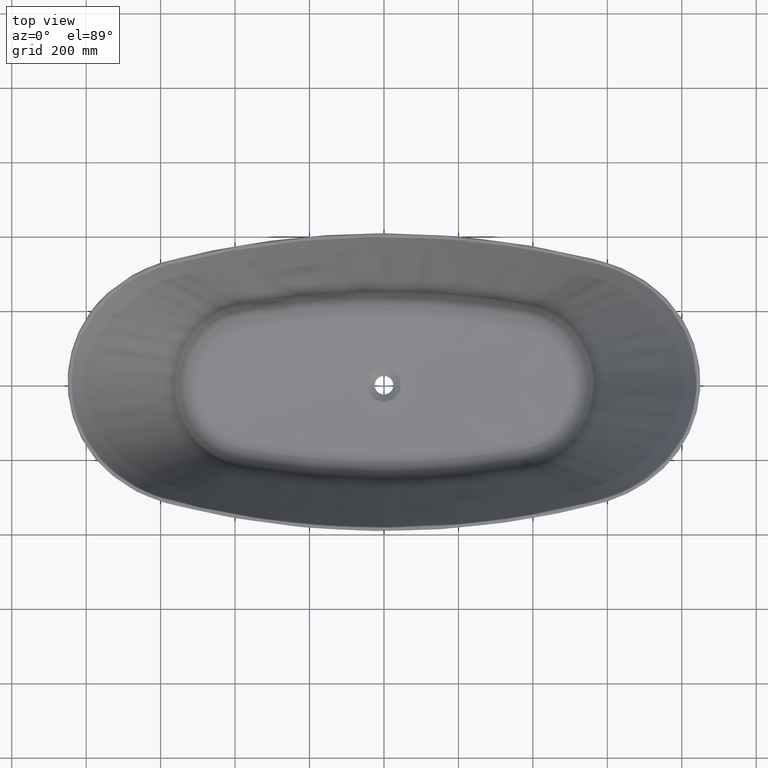
[diagram: clean part render]
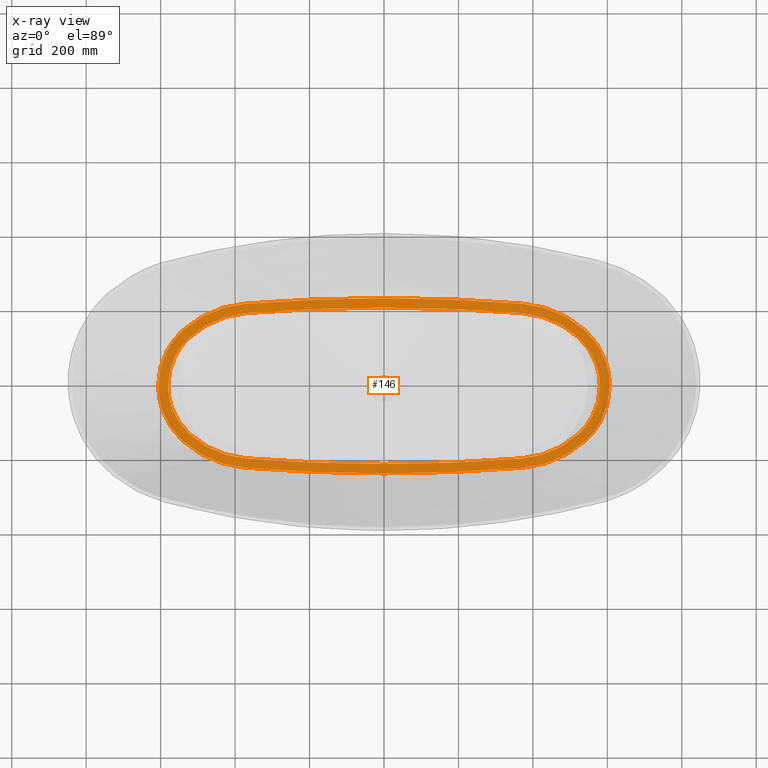
[diagram: x-ray — body ghosted, one internal face saturated and labeled with its STEP entity id]
A machine part, top view, then the same camera in x-ray: the body is ghosted and one INTERNAL B-rep face — a face not visible from any outside direction — is saturated and labeled: STEP entity #146.
In plain terms, the highlighted planar face has unit normal (0, 0, -1).
Its self-contained STEP definition (entity closure, byte-faithful):
#146=ADVANCED_FACE('',(#180,#181),#176,.F.);
#176=PLANE('',#638);
#180=FACE_BOUND('',#216,.T.);
#181=FACE_BOUND('',#217,.T.);
#216=EDGE_LOOP('',(#264,#265,#266,#267,#268,#269,#270,#271,#272,#273,#274,
#275));
#217=EDGE_LOOP('',(#276,#277,#278,#279,#280,#281,#282,#283,#284,#285,#286,
#287));
#264=ORIENTED_EDGE('',*,*,#486,.T.);
#265=ORIENTED_EDGE('',*,*,#487,.T.);
#266=ORIENTED_EDGE('',*,*,#488,.T.);
#267=ORIENTED_EDGE('',*,*,#489,.T.);
#268=ORIENTED_EDGE('',*,*,#490,.T.);
#269=ORIENTED_EDGE('',*,*,#491,.T.);
#270=ORIENTED_EDGE('',*,*,#492,.T.);
#271=ORIENTED_EDGE('',*,*,#493,.T.);
#272=ORIENTED_EDGE('',*,*,#494,.T.);
#273=ORIENTED_EDGE('',*,*,#495,.T.);
#274=ORIENTED_EDGE('',*,*,#496,.T.);
#275=ORIENTED_EDGE('',*,*,#497,.T.);
#276=ORIENTED_EDGE('',*,*,#498,.F.);
#277=ORIENTED_EDGE('',*,*,#499,.F.);
#278=ORIENTED_EDGE('',*,*,#500,.F.);
#279=ORIENTED_EDGE('',*,*,#501,.F.);
#280=ORIENTED_EDGE('',*,*,#502,.F.);
#281=ORIENTED_EDGE('',*,*,#503,.F.);
#282=ORIENTED_EDGE('',*,*,#504,.F.);
#283=ORIENTED_EDGE('',*,*,#505,.F.);
#284=ORIENTED_EDGE('',*,*,#506,.F.);
#285=ORIENTED_EDGE('',*,*,#507,.F.);
#286=ORIENTED_EDGE('',*,*,#508,.F.);
#287=ORIENTED_EDGE('',*,*,#509,.F.);
#420=VERTEX_POINT('',#697);
#421=VERTEX_POINT('',#698);
#422=VERTEX_POINT('',#711);
#423=VERTEX_POINT('',#718);
#424=VERTEX_POINT('',#725);
#425=VERTEX_POINT('',#738);
#426=VERTEX_POINT('',#753);
#427=VERTEX_POINT('',#768);
#428=VERTEX_POINT('',#781);
#429=VERTEX_POINT('',#788);
#430=VERTEX_POINT('',#795);
#431=VERTEX_POINT('',#808);
#432=VERTEX_POINT('',#835);
#433=VERTEX_POINT('',#836);
#434=VERTEX_POINT('',#851);
#435=VERTEX_POINT('',#866);
#436=VERTEX_POINT('',#881);
#437=VERTEX_POINT('',#886);
#438=VERTEX_POINT('',#891);
#439=VERTEX_POINT('',#904);
#440=VERTEX_POINT('',#919);
#441=VERTEX_POINT('',#934);
#442=VERTEX_POINT('',#949);
#443=VERTEX_POINT('',#954);
#486=EDGE_CURVE('',#420,#421,#564,.T.);
#487=EDGE_CURVE('',#421,#422,#565,.T.);
#488=EDGE_CURVE('',#422,#423,#566,.T.);
#489=EDGE_CURVE('',#423,#424,#567,.T.);
#490=EDGE_CURVE('',#424,#425,#568,.T.);
#491=EDGE_CURVE('',#425,#426,#569,.T.);
#492=EDGE_CURVE('',#426,#427,#570,.T.);
#493=EDGE_CURVE('',#427,#428,#571,.T.);
#494=EDGE_CURVE('',#428,#429,#572,.T.);
#495=EDGE_CURVE('',#429,#430,#573,.T.);
#496=EDGE_CURVE('',#430,#431,#574,.T.);
#497=EDGE_CURVE('',#431,#420,#575,.T.);
#498=EDGE_CURVE('',#432,#433,#576,.T.);
#499=EDGE_CURVE('',#434,#432,#577,.T.);
#500=EDGE_CURVE('',#435,#434,#578,.T.);
#501=EDGE_CURVE('',#436,#435,#579,.T.);
#502=EDGE_CURVE('',#437,#436,#580,.T.);
#503=EDGE_CURVE('',#438,#437,#581,.T.);
#504=EDGE_CURVE('',#439,#438,#582,.T.);
#505=EDGE_CURVE('',#440,#439,#583,.T.);
#506=EDGE_CURVE('',#441,#440,#584,.T.);
#507=EDGE_CURVE('',#442,#441,#585,.T.);
#508=EDGE_CURVE('',#443,#442,#586,.T.);
#509=EDGE_CURVE('',#433,#443,#587,.T.);
#564=B_SPLINE_CURVE_WITH_KNOTS('',3,(#683,#684,#685,#686,#687,#688,#689,
#690,#691,#692,#693,#694,#695,#696),.UNSPECIFIED.,.F.,.F.,(4,2,2,2,2,2,
4),(0.,0.250000000000001,0.375000000000001,0.500000000000001,0.625000000000001,
0.750000000000001,1.),.UNSPECIFIED.);
#565=B_SPLINE_CURVE_WITH_KNOTS('',3,(#699,#700,#701,#702,#703,#704,#705,
#706,#707,#708,#709,#710),.UNSPECIFIED.,.F.,.F.,(4,2,2,2,2,4),(0.,0.249999999999999,
0.5,0.625,0.75,1.),.UNSPECIFIED.);
#566=B_SPLINE_CURVE_WITH_KNOTS('',3,(#712,#713,#714,#715,#716,#717),
 .UNSPECIFIED.,.F.,.F.,(4,2,4),(0.,0.5,1.),.UNSPECIFIED.);
#567=B_SPLINE_CURVE_WITH_KNOTS('',3,(#719,#720,#721,#722,#723,#724),
 .UNSPECIFIED.,.F.,.F.,(4,2,4),(0.,0.5,1.),.UNSPECIFIED.);
#568=B_SPLINE_CURVE_WITH_KNOTS('',3,(#726,#727,#728,#729,#730,#731,#732,
#733,#734,#735,#736,#737),.UNSPECIFIED.,.F.,.F.,(4,2,2,2,2,4),(0.,0.250000000000001,
0.500000000000001,0.625000000000001,0.750000000000001,1.),.UNSPECIFIED.);
#569=B_SPLINE_CURVE_WITH_KNOTS('',3,(#739,#740,#741,#742,#743,#744,#745,
#746,#747,#748,#749,#750,#751,#752),.UNSPECIFIED.,.F.,.F.,(4,2,2,2,2,2,
4),(0.,0.25,0.375,0.5,0.625,0.75,1.),.UNSPECIFIED.);
#570=B_SPLINE_CURVE_WITH_KNOTS('',3,(#754,#755,#756,#757,#758,#759,#760,
#761,#762,#763,#764,#765,#766,#767),.UNSPECIFIED.,.F.,.F.,(4,2,2,2,2,2,
4),(0.,0.250000000000001,0.375000000000001,0.500000000000001,0.625000000000001,
0.750000000000001,1.),.UNSPECIFIED.);
#571=B_SPLINE_CURVE_WITH_KNOTS('',3,(#769,#770,#771,#772,#773,#774,#775,
#776,#777,#778,#779,#780),.UNSPECIFIED.,.F.,.F.,(4,2,2,2,2,4),(0.,0.25,
0.499999999999999,0.625,0.75,1.),.UNSPECIFIED.);
#572=B_SPLINE_CURVE_WITH_KNOTS('',3,(#782,#783,#784,#785,#786,#787),
 .UNSPECIFIED.,.F.,.F.,(4,2,4),(0.,0.5,1.),.UNSPECIFIED.);
#573=B_SPLINE_CURVE_WITH_KNOTS('',3,(#789,#790,#791,#792,#793,#794),
 .UNSPECIFIED.,.F.,.F.,(4,2,4),(0.,0.5,1.),.UNSPECIFIED.);
#574=B_SPLINE_CURVE_WITH_KNOTS('',3,(#796,#797,#798,#799,#800,#801,#802,
#803,#804,#805,#806,#807),.UNSPECIFIED.,.F.,.F.,(4,2,2,2,2,4),(0.,0.25,
0.5,0.625,0.75,1.),.UNSPECIFIED.);
#575=B_SPLINE_CURVE_WITH_KNOTS('',3,(#809,#810,#811,#812,#813,#814,#815,
#816,#817,#818,#819,#820,#821,#822),.UNSPECIFIED.,.F.,.F.,(4,2,2,2,2,2,
4),(0.,0.25,0.375,0.5,0.625,0.75,1.),.UNSPECIFIED.);
#576=B_SPLINE_CURVE_WITH_KNOTS('',3,(#823,#824,#825,#826,#827,#828,#829,
#830,#831,#832,#833,#834),.UNSPECIFIED.,.F.,.F.,(4,2,2,2,2,4),(0.,0.250000000000001,
0.500000000000001,0.750000000000001,0.875,1.),.UNSPECIFIED.);
#577=B_SPLINE_CURVE_WITH_KNOTS('',3,(#837,#838,#839,#840,#841,#842,#843,
#844,#845,#846,#847,#848,#849,#850),.UNSPECIFIED.,.F.,.F.,(4,2,2,2,2,2,
4),(0.,0.125,0.25,0.5,0.75,0.875,1.),.UNSPECIFIED.);
#578=B_SPLINE_CURVE_WITH_KNOTS('',3,(#852,#853,#854,#855,#856,#857,#858,
#859,#860,#861,#862,#863,#864,#865),.UNSPECIFIED.,.F.,.F.,(4,2,2,2,2,2,
4),(0.,0.125,0.25,0.5,0.75,0.875,1.),.UNSPECIFIED.);
#579=B_SPLINE_CURVE_WITH_KNOTS('',3,(#867,#868,#869,#870,#871,#872,#873,
#874,#875,#876,#877,#878,#879,#880),.UNSPECIFIED.,.F.,.F.,(4,2,2,2,2,2,
4),(0.,0.125,0.25,0.5,0.75,0.875,1.),.UNSPECIFIED.);
#580=B_SPLINE_CURVE_WITH_KNOTS('',3,(#882,#883,#884,#885),.UNSPECIFIED.,
 .F.,.F.,(4,4),(0.,1.),.UNSPECIFIED.);
#581=B_SPLINE_CURVE_WITH_KNOTS('',3,(#887,#888,#889,#890),.UNSPECIFIED.,
 .F.,.F.,(4,4),(0.,1.),.UNSPECIFIED.);
#582=B_SPLINE_CURVE_WITH_KNOTS('',3,(#892,#893,#894,#895,#896,#897,#898,
#899,#900,#901,#902,#903),.UNSPECIFIED.,.F.,.F.,(4,2,2,2,2,4),(0.,0.25,
0.5,0.75,0.875,1.),.UNSPECIFIED.);
#583=B_SPLINE_CURVE_WITH_KNOTS('',3,(#905,#906,#907,#908,#909,#910,#911,
#912,#913,#914,#915,#916,#917,#918),.UNSPECIFIED.,.F.,.F.,(4,2,2,2,2,2,
4),(0.,0.125,0.249999999999999,0.499999999999999,0.749999999999999,0.874999999999999,
1.),.UNSPECIFIED.);
#584=B_SPLINE_CURVE_WITH_KNOTS('',3,(#920,#921,#922,#923,#924,#925,#926,
#927,#928,#929,#930,#931,#932,#933),.UNSPECIFIED.,.F.,.F.,(4,2,2,2,2,2,
4),(0.,0.125,0.25,0.5,0.75,0.875,1.),.UNSPECIFIED.);
#585=B_SPLINE_CURVE_WITH_KNOTS('',3,(#935,#936,#937,#938,#939,#940,#941,
#942,#943,#944,#945,#946,#947,#948),.UNSPECIFIED.,.F.,.F.,(4,2,2,2,2,2,
4),(0.,0.125,0.25,0.5,0.75,0.875,1.),.UNSPECIFIED.);
#586=B_SPLINE_CURVE_WITH_KNOTS('',3,(#950,#951,#952,#953),.UNSPECIFIED.,
 .F.,.F.,(4,4),(0.,1.),.UNSPECIFIED.);
#587=B_SPLINE_CURVE_WITH_KNOTS('',3,(#955,#956,#957,#958),.UNSPECIFIED.,
 .F.,.F.,(4,4),(0.,1.),.UNSPECIFIED.);
#638=AXIS2_PLACEMENT_3D('',#959,#654,#655);
#654=DIRECTION('',(0.,0.,-1.));
#655=DIRECTION('',(-0.0710097247914067,0.997475623253545,0.));
#683=CARTESIAN_POINT('',(579.99988551936,7.15397143041703E-6,-572.));
#684=CARTESIAN_POINT('',(579.999882628144,-12.1242826560328,-572.));
#685=CARTESIAN_POINT('',(578.751097946527,-24.090596611442,-572.));
#686=CARTESIAN_POINT('',(575.031242567321,-41.8064554004511,-572.));
#687=CARTESIAN_POINT('',(573.472885632175,-47.6863365658462,-572.));
#688=CARTESIAN_POINT('',(569.796657229539,-59.1350587449963,-572.));
#689=CARTESIAN_POINT('',(567.673954647341,-64.7322090064397,-572.));
#690=CARTESIAN_POINT('',(562.870634295052,-75.6771217895383,-572.));
#691=CARTESIAN_POINT('',(560.189514926441,-81.0246600969686,-572.));
#692=CARTESIAN_POINT('',(554.261430862597,-91.4668042049884,-572.));
#693=CARTESIAN_POINT('',(550.99597468004,-96.5854471072753,-572.));
#694=CARTESIAN_POINT('',(540.462731939863,-111.339411001318,-572.));
#695=CARTESIAN_POINT('',(532.489909135349,-120.361429927127,-572.));
#696=CARTESIAN_POINT('',(523.57092169661,-128.573341623775,-572.));
#697=CARTESIAN_POINT('',(579.99988551936,7.1539712794748E-6,-572.));
#698=CARTESIAN_POINT('',(523.57092169661,-128.573341623775,-572.));
#699=CARTESIAN_POINT('',(523.570921696609,-128.573341623775,-572.));
#700=CARTESIAN_POINT('',(513.086909189503,-138.226206988397,-572.));
#701=CARTESIAN_POINT('',(501.885942930787,-146.914445126418,-572.));
#702=CARTESIAN_POINT('',(478.090021130313,-162.415375018892,-572.));
#703=CARTESIAN_POINT('',(465.514747826253,-169.189979030715,-572.));
#704=CARTESIAN_POINT('',(445.969010886053,-177.703453764772,-572.));
#705=CARTESIAN_POINT('',(439.307679794319,-180.27955925873,-572.));
#706=CARTESIAN_POINT('',(425.883395869618,-184.83975094617,-572.));
#707=CARTESIAN_POINT('',(419.105689896763,-186.831590804364,-572.));
#708=CARTESIAN_POINT('',(398.579064784691,-191.956344747875,-572.));
#709=CARTESIAN_POINT('',(384.636151092885,-194.236350499592,-572.));
#710=CARTESIAN_POINT('',(370.431872342851,-195.36724957124,-572.));
#711=CARTESIAN_POINT('',(370.431872342851,-195.36724957124,-572.));
#712=CARTESIAN_POINT('',(370.431872342851,-195.36724957124,-572.));
#713=CARTESIAN_POINT('',(308.819773517108,-200.272607075865,-572.));
#714=CARTESIAN_POINT('',(247.112599289225,-203.90113824869,-572.));
#715=CARTESIAN_POINT('',(123.602692156585,-208.779837684053,-572.));
#716=CARTESIAN_POINT('',(61.8067026414226,-209.999999817553,-572.));
#717=CARTESIAN_POINT('',(2.04705881745967E-6,-209.999995600157,-572.));
#718=CARTESIAN_POINT('',(2.04705886913502E-6,-209.999995600157,-572.));
#719=CARTESIAN_POINT('',(2.04705887963883E-6,-209.999995600157,-572.));
#720=CARTESIAN_POINT('',(-61.8067009636743,-209.999991382761,-572.));
#721=CARTESIAN_POINT('',(-123.608166535709,-208.779731466056,-572.));
#722=CARTESIAN_POINT('',(-247.118072942993,-203.900831702966,-572.));
#723=CARTESIAN_POINT('',(-308.819640895535,-200.272617408991,-572.));
#724=CARTESIAN_POINT('',(-370.431872476997,-195.36724960553,-572.));
#725=CARTESIAN_POINT('',(-370.431872476997,-195.36724960553,-572.));
#726=CARTESIAN_POINT('',(-370.431872476997,-195.36724960553,-572.));
#727=CARTESIAN_POINT('',(-384.636462488502,-194.236325814665,-572.));
#728=CARTESIAN_POINT('',(-398.627192279551,-191.952391236757,-572.));
#729=CARTESIAN_POINT('',(-426.177122621597,-185.057965661802,-572.));
#730=CARTESIAN_POINT('',(-439.697597569798,-180.450571347313,-572.));
#731=CARTESIAN_POINT('',(-459.23478468096,-171.917358580539,-572.));
#732=CARTESIAN_POINT('',(-465.654752848519,-168.787880707843,-572.));
#733=CARTESIAN_POINT('',(-478.12983476107,-162.051631831153,-572.));
#734=CARTESIAN_POINT('',(-484.200751934066,-158.439384666474,-572.));
#735=CARTESIAN_POINT('',(-501.921558178837,-146.881887592513,-572.));
#736=CARTESIAN_POINT('',(-513.086688334569,-138.226410932468,-572.));
#737=CARTESIAN_POINT('',(-523.570920985473,-128.57334226029,-572.));
#738=CARTESIAN_POINT('',(-523.570920985473,-128.57334226029,-572.));
#739=CARTESIAN_POINT('',(-523.570920985473,-128.57334226029,-572.));
#740=CARTESIAN_POINT('',(-532.489817592958,-120.361513669793,-572.));
#741=CARTESIAN_POINT('',(-540.456323270867,-111.345358059707,-572.));
#742=CARTESIAN_POINT('',(-550.976744814648,-96.6140002255503,-572.));
#743=CARTESIAN_POINT('',(-554.249559879194,-91.4866129807353,-572.));
#744=CARTESIAN_POINT('',(-560.186922728381,-81.0302976353081,-572.));
#745=CARTESIAN_POINT('',(-562.869711780668,-75.6789627619492,-572.));
#746=CARTESIAN_POINT('',(-567.673230865955,-64.7341289587589,-572.));
#747=CARTESIAN_POINT('',(-569.794263289505,-59.1407603143948,-572.));
#748=CARTESIAN_POINT('',(-573.466343304142,-47.7084441194988,-572.));
#749=CARTESIAN_POINT('',(-575.023270505745,-41.839884467454,-572.));
#750=CARTESIAN_POINT('',(-578.751174553327,-24.0993380305139,-572.));
#751=CARTESIAN_POINT('',(-579.999888412529,-12.1243690663303,-572.));
#752=CARTESIAN_POINT('',(-579.999885519362,-7.15875560338672E-6,-572.));
#753=CARTESIAN_POINT('',(-579.999885519362,-7.15875566255702E-6,-572.));
#754=CARTESIAN_POINT('',(-579.999885519362,-7.15875572172731E-6,-572.));
#755=CARTESIAN_POINT('',(-579.999882626212,12.1242825522096,-572.));
#756=CARTESIAN_POINT('',(-578.751097969173,24.0905964479408,-572.));
#757=CARTESIAN_POINT('',(-575.031242600045,41.8064551972899,-572.));
#758=CARTESIAN_POINT('',(-573.472885685483,47.6863362871612,-572.));
#759=CARTESIAN_POINT('',(-569.796657342489,59.1350583051571,-572.));
#760=CARTESIAN_POINT('',(-567.673954786076,64.7322085036323,-572.));
#761=CARTESIAN_POINT('',(-562.870634483779,75.6771211981393,-572.));
#762=CARTESIAN_POINT('',(-560.189515132568,81.0246594769391,-572.));
#763=CARTESIAN_POINT('',(-554.261431081618,91.4668035565018,-572.));
#764=CARTESIAN_POINT('',(-550.995974871612,96.5854464577599,-572.));
#765=CARTESIAN_POINT('',(-540.462732379783,111.339410212528,-572.));
#766=CARTESIAN_POINT('',(-532.489909878665,120.361429208098,-572.));
#767=CARTESIAN_POINT('',(-523.570922184083,128.573340540073,-572.));
#768=CARTESIAN_POINT('',(-523.570922184083,128.573340540073,-572.));
#769=CARTESIAN_POINT('',(-523.570922184083,128.573340540073,-572.));
#770=CARTESIAN_POINT('',(-513.086909382299,138.226205470455,-572.));
#771=CARTESIAN_POINT('',(-501.885943279846,146.914443902041,-572.));
#772=CARTESIAN_POINT('',(-478.090021338623,162.415374007229,-572.));
#773=CARTESIAN_POINT('',(-465.51474811006,169.189977869443,-572.));
#774=CARTESIAN_POINT('',(-445.969010988786,177.703452445162,-572.));
#775=CARTESIAN_POINT('',(-439.307679768799,180.27955758265,-572.));
#776=CARTESIAN_POINT('',(-425.883395949993,184.839749181233,-572.));
#777=CARTESIAN_POINT('',(-419.105690071755,186.831589244119,-572.));
#778=CARTESIAN_POINT('',(-398.57906498552,191.956342861899,-572.));
#779=CARTESIAN_POINT('',(-384.636151252203,194.236348398128,-572.));
#780=CARTESIAN_POINT('',(-370.431872423536,195.36724735386,-572.));
#781=CARTESIAN_POINT('',(-370.431872423536,195.36724735386,-572.));
#782=CARTESIAN_POINT('',(-370.431872423536,195.36724735386,-572.));
#783=CARTESIAN_POINT('',(-308.819773213733,200.272604359117,-572.));
#784=CARTESIAN_POINT('',(-247.112598486765,203.901132350411,-572.));
#785=CARTESIAN_POINT('',(-123.602690861675,208.779835760421,-572.));
#786=CARTESIAN_POINT('',(-61.8067009355622,209.999999999033,-572.));
#787=CARTESIAN_POINT('',(-1.82987568916602E-9,210.,-572.));
#788=CARTESIAN_POINT('',(-1.82991564291378E-9,210.,-572.));
#789=CARTESIAN_POINT('',(-1.82991442512807E-9,210.,-572.));
#790=CARTESIAN_POINT('',(61.8067028206518,210.000000000967,-572.));
#791=CARTESIAN_POINT('',(123.608167937169,208.779728984252,-572.));
#792=CARTESIAN_POINT('',(247.118073880912,203.900826092242,-572.));
#793=CARTESIAN_POINT('',(308.819641562539,200.272613619353,-572.));
#794=CARTESIAN_POINT('',(370.43187304232,195.367247357444,-572.));
#795=CARTESIAN_POINT('',(370.43187304232,195.367247357444,-572.));
#796=CARTESIAN_POINT('',(370.43187304232,195.367247357444,-572.));
#797=CARTESIAN_POINT('',(384.636462932424,194.23632392978,-572.));
#798=CARTESIAN_POINT('',(398.627192474536,191.952389360215,-572.));
#799=CARTESIAN_POINT('',(426.177122293027,185.057964334875,-572.));
#800=CARTESIAN_POINT('',(439.697597376304,180.450570091957,-572.));
#801=CARTESIAN_POINT('',(459.234784311691,171.917357690042,-572.));
#802=CARTESIAN_POINT('',(465.654752315841,168.78787953758,-572.));
#803=CARTESIAN_POINT('',(478.129834525531,162.051630718261,-572.));
#804=CARTESIAN_POINT('',(484.200751942369,158.439383756003,-572.));
#805=CARTESIAN_POINT('',(501.921558497877,146.881886773613,-572.));
#806=CARTESIAN_POINT('',(513.086688427471,138.22640967274,-572.));
#807=CARTESIAN_POINT('',(523.570921294692,128.573341347521,-572.));
#808=CARTESIAN_POINT('',(523.570921294692,128.573341347521,-572.));
#809=CARTESIAN_POINT('',(523.570921294691,128.573341347521,-572.));
#810=CARTESIAN_POINT('',(532.489818096368,120.361513042816,-572.));
#811=CARTESIAN_POINT('',(540.456323503904,111.345357296371,-572.));
#812=CARTESIAN_POINT('',(550.976744960597,96.6139994819005,-572.));
#813=CARTESIAN_POINT('',(554.249559898565,91.4866122301818,-572.));
#814=CARTESIAN_POINT('',(560.186922661749,81.030296955565,-572.));
#815=CARTESIAN_POINT('',(562.869712010304,75.6789622451626,-572.));
#816=CARTESIAN_POINT('',(567.673231325441,64.734128575001,-572.));
#817=CARTESIAN_POINT('',(569.794263411903,59.1407597841106,-572.));
#818=CARTESIAN_POINT('',(573.466343155628,47.7084434327783,-572.));
#819=CARTESIAN_POINT('',(575.023270595514,41.8398838193725,-572.));
#820=CARTESIAN_POINT('',(578.751174839808,24.0993377433702,-572.));
#821=CARTESIAN_POINT('',(579.999888410594,12.1243689253491,-572.));
#822=CARTESIAN_POINT('',(579.99988551936,7.15397112853256E-6,-572.));
#823=CARTESIAN_POINT('',(541.297253678103,-147.798425388227,-572.000000000001));
#824=CARTESIAN_POINT('',(529.743296694966,-158.333392652805,-572.000000000001));
#825=CARTESIAN_POINT('',(517.145850204861,-168.020405809151,-572.));
#826=CARTESIAN_POINT('',(490.787175153608,-184.962031264033,-572.));
#827=CARTESIAN_POINT('',(476.931800582151,-192.315680869395,-572.));
#828=CARTESIAN_POINT('',(447.892532834503,-204.707475721635,-572.));
#829=CARTESIAN_POINT('',(433.12251169284,-209.571208754694,-572.));
#830=CARTESIAN_POINT('',(410.616515392756,-214.999530743231,-572.));
#831=CARTESIAN_POINT('',(403.055748621155,-216.496301180216,-572.));
#832=CARTESIAN_POINT('',(387.818603394068,-218.874739816674,-572.));
#833=CARTESIAN_POINT('',(380.131724587295,-219.700541780535,-572.));
#834=CARTESIAN_POINT('',(372.408463069037,-220.332772588874,-572.));
#835=CARTESIAN_POINT('',(541.297253678102,-147.798425388228,-572.));
#836=CARTESIAN_POINT('',(372.408463069037,-220.332772588874,-572.));
#837=CARTESIAN_POINT('',(606.673279020671,7.95264553647409E-7,-572.));
#838=CARTESIAN_POINT('',(606.673277364379,-6.92853817624351,-572.));
#839=CARTESIAN_POINT('',(606.309575908973,-13.9276721590491,-572.));
#840=CARTESIAN_POINT('',(604.85388271731,-27.7959824613615,-572.));
#841=CARTESIAN_POINT('',(603.769664347308,-34.6399470159605,-572.));
#842=CARTESIAN_POINT('',(599.478514319805,-54.909018304589,-572.));
#843=CARTESIAN_POINT('',(595.243004322039,-68.0743587545625,-572.));
#844=CARTESIAN_POINT('',(583.910043370451,-93.6785529628218,-572.));
#845=CARTESIAN_POINT('',(577.022222986429,-105.642178323685,-572.));
#846=CARTESIAN_POINT('',(564.947958324554,-122.391335474771,-572.));
#847=CARTESIAN_POINT('',(560.630113786803,-127.773176558895,-572.));
#848=CARTESIAN_POINT('',(551.394530131558,-138.125020343194,-572.000000000001));
#849=CARTESIAN_POINT('',(546.440514174924,-143.108769623858,-572.));
#850=CARTESIAN_POINT('',(541.297253678102,-147.798425388228,-572.));
#851=CARTESIAN_POINT('',(606.673279020671,7.95264798954693E-7,-572.));
#852=CARTESIAN_POINT('',(541.297253317294,147.798425103492,-572.000000000001));
#853=CARTESIAN_POINT('',(546.440514126401,143.108768877083,-572.000000000001));
#854=CARTESIAN_POINT('',(551.394537773356,138.125024578112,-572.));
#855=CARTESIAN_POINT('',(560.630164457874,127.773208217596,-572.));
#856=CARTESIAN_POINT('',(564.948015554478,122.391370861692,-572.));
#857=CARTESIAN_POINT('',(577.022224692923,105.642174100919,-572.));
#858=CARTESIAN_POINT('',(583.910044656747,93.6785485558515,-572.));
#859=CARTESIAN_POINT('',(595.243009113278,68.074359272926,-572.));
#860=CARTESIAN_POINT('',(599.478498257277,54.9090152953609,-572.));
#861=CARTESIAN_POINT('',(603.769677401198,34.6399530339346,-572.));
#862=CARTESIAN_POINT('',(604.853912447257,27.7959931234909,-572.));
#863=CARTESIAN_POINT('',(606.3095923986,13.9276800521849,-572.));
#864=CARTESIAN_POINT('',(606.673280676965,6.92854284391736,-572.));
#865=CARTESIAN_POINT('',(606.673279020671,7.95264861761278E-7,-572.));
#866=CARTESIAN_POINT('',(541.297253317293,147.798425103494,-572.));
#867=CARTESIAN_POINT('',(372.408462945257,220.332770324295,-572.));
#868=CARTESIAN_POINT('',(380.206354714173,219.694430328637,-572.));
#869=CARTESIAN_POINT('',(387.959364325889,218.858087555375,-572.));
#870=CARTESIAN_POINT('',(403.299324979498,216.452815606559,-572.));
#871=CARTESIAN_POINT('',(410.899051471196,214.940246791209,-572.));
#872=CARTESIAN_POINT('',(433.485782930252,209.465301587129,-572.));
#873=CARTESIAN_POINT('',(448.261672811515,204.571566813487,-572.));
#874=CARTESIAN_POINT('',(477.220945174406,192.170183002752,-572.));
#875=CARTESIAN_POINT('',(491.00424866737,184.833384001273,-572.));
#876=CARTESIAN_POINT('',(510.656547663795,172.1857781844,-572.));
#877=CARTESIAN_POINT('',(517.036686194737,167.694407383563,-572.000000000001));
#878=CARTESIAN_POINT('',(529.450670933062,158.152528908218,-572.000000000001));
#879=CARTESIAN_POINT('',(535.506470921446,153.078495418103,-572.000000000001));
#880=CARTESIAN_POINT('',(541.297253317293,147.798425103493,-572.000000000001));
#881=CARTESIAN_POINT('',(372.408462945257,220.332770324295,-572.));
#882=CARTESIAN_POINT('',(-2.22957864657381E-9,235.484928200269,-572.));
#883=CARTESIAN_POINT('',(124.224921603004,235.484928202187,-572.));
#884=CARTESIAN_POINT('',(248.743703174067,230.456040120126,-572.));
#885=CARTESIAN_POINT('',(372.408462945257,220.332770324295,-572.));
#886=CARTESIAN_POINT('',(-2.22940259142484E-9,235.484928200269,-572.));
#887=CARTESIAN_POINT('',(-372.408462914139,220.33277029113,-571.999999999999));
#888=CARTESIAN_POINT('',(-248.53074100968,230.473474007402,-571.999999999999));
#889=CARTESIAN_POINT('',(-124.247965705882,235.484928198351,-572.));
#890=CARTESIAN_POINT('',(-2.22921412347827E-9,235.484928200269,-572.));
#891=CARTESIAN_POINT('',(-372.408462914139,220.332770291129,-572.000000000001));
#892=CARTESIAN_POINT('',(-541.297253329765,147.798425020532,-571.999999999999));
#893=CARTESIAN_POINT('',(-529.743296591716,158.333392102237,-571.999999999999));
#894=CARTESIAN_POINT('',(-517.145850089076,168.020404954782,-572.));
#895=CARTESIAN_POINT('',(-490.787175441624,184.962030089708,-572.));
#896=CARTESIAN_POINT('',(-476.93180118322,192.31567959967,-572.));
#897=CARTESIAN_POINT('',(-447.892533543083,204.707473902063,-572.));
#898=CARTESIAN_POINT('',(-433.122512437586,209.571207167062,-572.));
#899=CARTESIAN_POINT('',(-410.616515892079,214.999528750741,-572.));
#900=CARTESIAN_POINT('',(-403.055748967445,216.496298814756,-572.));
#901=CARTESIAN_POINT('',(-387.818603577814,218.874737746108,-572.));
#902=CARTESIAN_POINT('',(-380.131724594384,219.700539513727,-572.));
#903=CARTESIAN_POINT('',(-372.40846291414,220.33277029113,-572.));
#904=CARTESIAN_POINT('',(-541.297253329766,147.798425020531,-572.));
#905=CARTESIAN_POINT('',(-606.673279020673,-7.95792200387597E-7,-572.));
#906=CARTESIAN_POINT('',(-606.673277363282,6.92853816795775,-572.));
#907=CARTESIAN_POINT('',(-606.309575910086,13.9276721400145,-572.));
#908=CARTESIAN_POINT('',(-604.853882718818,27.7959824228208,-572.));
#909=CARTESIAN_POINT('',(-603.769664348957,34.6399469677957,-572.));
#910=CARTESIAN_POINT('',(-599.47851432059,54.909018227643,-572.));
#911=CARTESIAN_POINT('',(-595.243004308991,68.0743586694597,-572.));
#912=CARTESIAN_POINT('',(-583.910043331052,93.6785528075113,-572.));
#913=CARTESIAN_POINT('',(-577.022222862108,105.642178094099,-572.));
#914=CARTESIAN_POINT('',(-564.947958269747,122.391335283334,-572.));
#915=CARTESIAN_POINT('',(-560.630113871974,127.773176462784,-572.));
#916=CARTESIAN_POINT('',(-551.394530040834,138.12502012974,-572.));
#917=CARTESIAN_POINT('',(-546.44051384051,143.108769225398,-572.));
#918=CARTESIAN_POINT('',(-541.297253329765,147.798425020531,-571.999999999999));
#919=CARTESIAN_POINT('',(-606.673279020673,-7.9579203631406E-7,-572.));
#920=CARTESIAN_POINT('',(-541.297253645719,-147.798425468851,-572.));
#921=CARTESIAN_POINT('',(-546.440514505507,-143.108769182227,-572.));
#922=CARTESIAN_POINT('',(-551.394537911817,-138.125024777816,-572.));
#923=CARTESIAN_POINT('',(-560.630164360267,-127.773208567451,-572.));
#924=CARTESIAN_POINT('',(-564.948015529067,-122.391371386719,-572.));
#925=CARTESIAN_POINT('',(-577.022224565117,-105.642174843051,-572.));
#926=CARTESIAN_POINT('',(-583.910044500057,-93.6785493516306,-572.));
#927=CARTESIAN_POINT('',(-595.243008493773,-68.0743596495365,-572.));
#928=CARTESIAN_POINT('',(-599.478498316534,-54.9090158082915,-572.));
#929=CARTESIAN_POINT('',(-603.769677202934,-34.6399532992056,-572.));
#930=CARTESIAN_POINT('',(-604.853912361596,-27.7959933517163,-572.));
#931=CARTESIAN_POINT('',(-606.309592413017,-13.9276801649432,-572.));
#932=CARTESIAN_POINT('',(-606.673280678064,-6.9285428982092,-572.));
#933=CARTESIAN_POINT('',(-606.673279020672,-7.95791872457367E-7,-572.));
#934=CARTESIAN_POINT('',(-541.297253645719,-147.798425468851,-572.));
#935=CARTESIAN_POINT('',(-372.408463110288,-220.332772607003,-572.));
#936=CARTESIAN_POINT('',(-380.206354770618,-219.69443259352,-572.000000000001));
#937=CARTESIAN_POINT('',(-387.959364238416,-218.858089600859,-572.));
#938=CARTESIAN_POINT('',(-403.299324813589,-216.452817967953,-572.));
#939=CARTESIAN_POINT('',(-410.899051147293,-214.940248715029,-572.));
#940=CARTESIAN_POINT('',(-433.485782388204,-209.465303110552,-572.));
#941=CARTESIAN_POINT('',(-448.261672294423,-204.57156853458,-572.));
#942=CARTESIAN_POINT('',(-477.220944626833,-192.170184161206,-572.));
#943=CARTESIAN_POINT('',(-491.004248490038,-184.83338520238,-572.));
#944=CARTESIAN_POINT('',(-510.656547649503,-172.185778928528,-572.));
#945=CARTESIAN_POINT('',(-517.036686239855,-167.694407971359,-572.));
#946=CARTESIAN_POINT('',(-529.450671179274,-158.152529291461,-572.));
#947=CARTESIAN_POINT('',(-535.506471250941,-153.078495798252,-572.));
#948=CARTESIAN_POINT('',(-541.297253645719,-147.798425468851,-572.));
#949=CARTESIAN_POINT('',(-372.408463110288,-220.332772607003,-572.));
#950=CARTESIAN_POINT('',(3.03999160053669E-7,-235.484923694653,-572.));
#951=CARTESIAN_POINT('',(-124.188197734709,-235.484915333111,-572.));
#952=CARTESIAN_POINT('',(-248.505209988148,-230.47556603293,-572.));
#953=CARTESIAN_POINT('',(-372.408463110288,-220.332772607003,-572.));
#954=CARTESIAN_POINT('',(3.03999166248805E-7,-235.484923694653,-572.));
#955=CARTESIAN_POINT('',(372.408463069037,-220.332772588874,-572.));
#956=CARTESIAN_POINT('',(248.505212590519,-230.475566798369,-572.));
#957=CARTESIAN_POINT('',(124.188199762798,-235.484932056195,-572.));
#958=CARTESIAN_POINT('',(3.03999151357525E-7,-235.484923694653,-572.));
#959=CARTESIAN_POINT('',(1.8947806286936E-14,-5.6843418860808E-15,-572.));